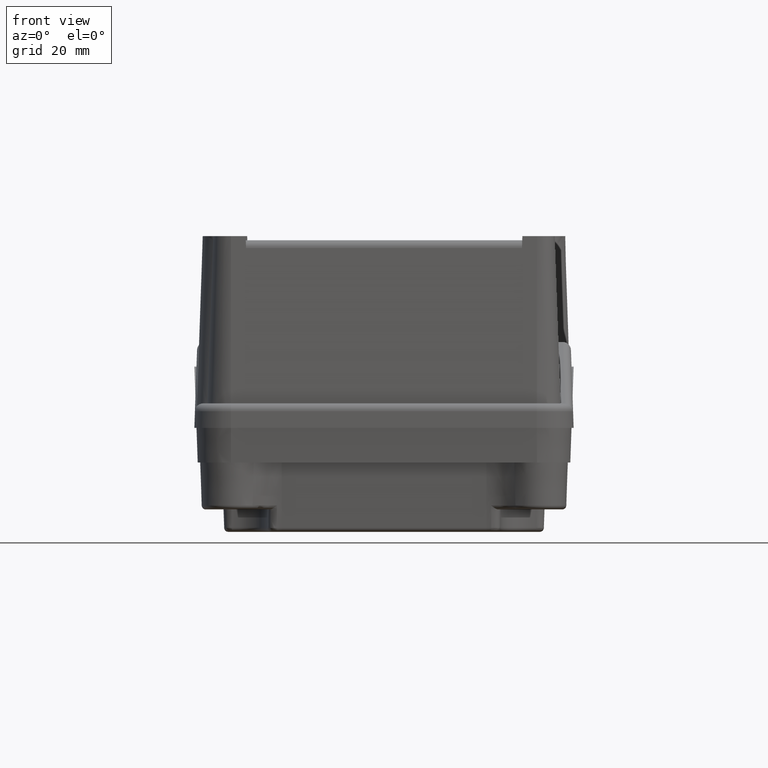
[diagram: clean part render]
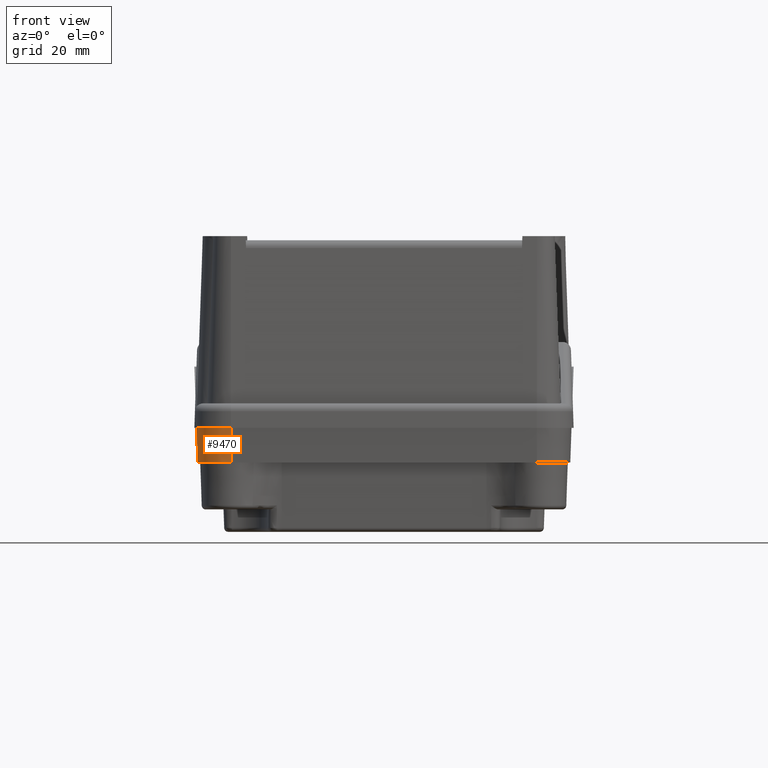
[diagram: same view with one face highlighted and labeled with its STEP entity id]
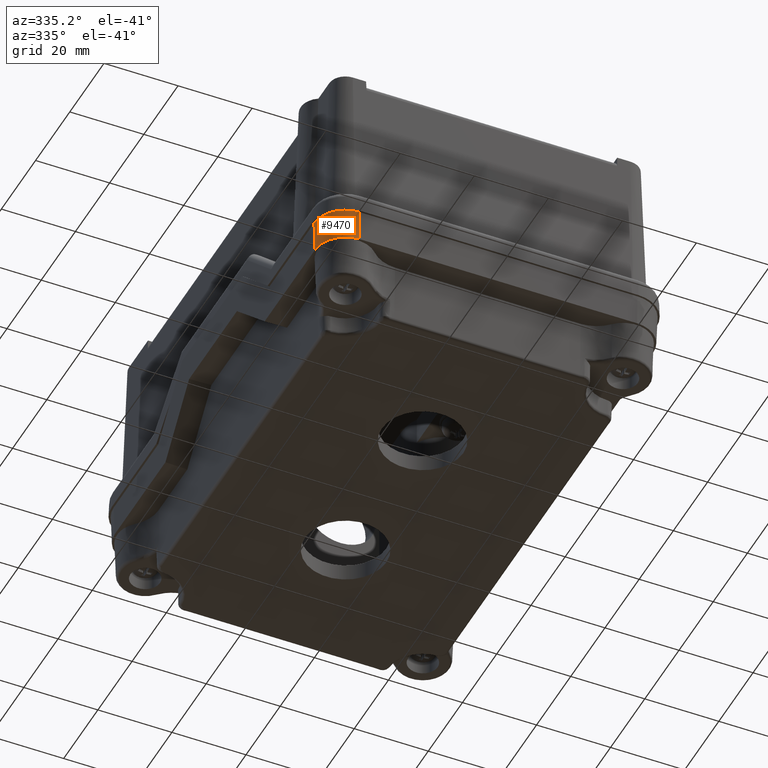
[diagram: same view with one face highlighted and labeled with its STEP entity id]
A machine part, front view. The second image highlights one B-rep face of the part: STEP entity #9470.
A second angle (auxiliary view) of the same face is appended — the face is thin or edge-on in the first view.
In plain terms, the highlighted conical surface has half-angle 2 deg.
Its self-contained STEP definition (entity closure, byte-faithful):
#8648=CARTESIAN_POINT('',(75.283278526198785,-75.477256797776988,23.499999999999986));
#8649=VERTEX_POINT('',#8648);
#8656=CARTESIAN_POINT('',(83.462640443142732,-67.297894880833113,23.499999999999986));
#8657=VERTEX_POINT('',#8656);
#8658=CARTESIAN_POINT('',(75.283278526198799,-67.297894880833070,23.499999999999986));
#8659=DIRECTION('',(0.0,0.0,-1.0));
#8660=DIRECTION('',(0.0,-1.0,0.0));
#8661=AXIS2_PLACEMENT_3D('',#8658,#8659,#8660);
#8662=CIRCLE('',#8661,8.179361916943915);
#8663=EDGE_CURVE('',#8657,#8649,#8662,.T.);
#8993=CARTESIAN_POINT('',(83.759466983822577,-67.297894880833113,15.0));
#8994=VERTEX_POINT('',#8993);
#9001=CARTESIAN_POINT('',(75.283278526198785,-75.774083338456848,15.0));
#9002=VERTEX_POINT('',#9001);
#9003=CARTESIAN_POINT('',(75.283278526198799,-67.297894880833070,15.000000000000002));
#9004=DIRECTION('',(0.0,0.0,1.0));
#9005=DIRECTION('',(0.0,-1.0,0.0));
#9006=AXIS2_PLACEMENT_3D('',#9003,#9004,#9005);
#9007=CIRCLE('',#9006,8.476188457623771);
#9008=EDGE_CURVE('',#9002,#8994,#9007,.T.);
#9418=CARTESIAN_POINT('',(75.283278526198785,-75.774083338456848,15.0));
#9419=DIRECTION('',(0.0,0.034899496702501,0.999390827019096));
#9420=VECTOR('',#9419,8.505181126539972);
#9421=LINE('',#9418,#9420);
#9422=EDGE_CURVE('',#9002,#8649,#9421,.T.);
#9454=CARTESIAN_POINT('',(75.283278526198799,-67.297894880833070,0.0));
#9455=DIRECTION('',(0.0,0.0,-1.0));
#9456=DIRECTION('',(0.0,-1.0,0.0));
#9457=AXIS2_PLACEMENT_3D('',#9454,#9455,#9456);
#9458=CONICAL_SURFACE('',#9457,8.999999999999986,2.0);
#9459=ORIENTED_EDGE('',*,*,#9008,.T.);
#9460=CARTESIAN_POINT('',(83.759466983822577,-67.297894880833113,15.0));
#9461=DIRECTION('',(-0.034899496702500,0.0,0.999390827019096));
#9462=VECTOR('',#9461,8.505181126539970);
#9463=LINE('',#9460,#9462);
#9464=EDGE_CURVE('',#8994,#8657,#9463,.T.);
#9465=ORIENTED_EDGE('',*,*,#9464,.T.);
#9466=ORIENTED_EDGE('',*,*,#8663,.T.);
#9467=ORIENTED_EDGE('',*,*,#9422,.F.);
#9468=EDGE_LOOP('',(#9459,#9465,#9466,#9467));
#9469=FACE_OUTER_BOUND('',#9468,.T.);
#9470=ADVANCED_FACE('',(#9469),#9458,.T.);